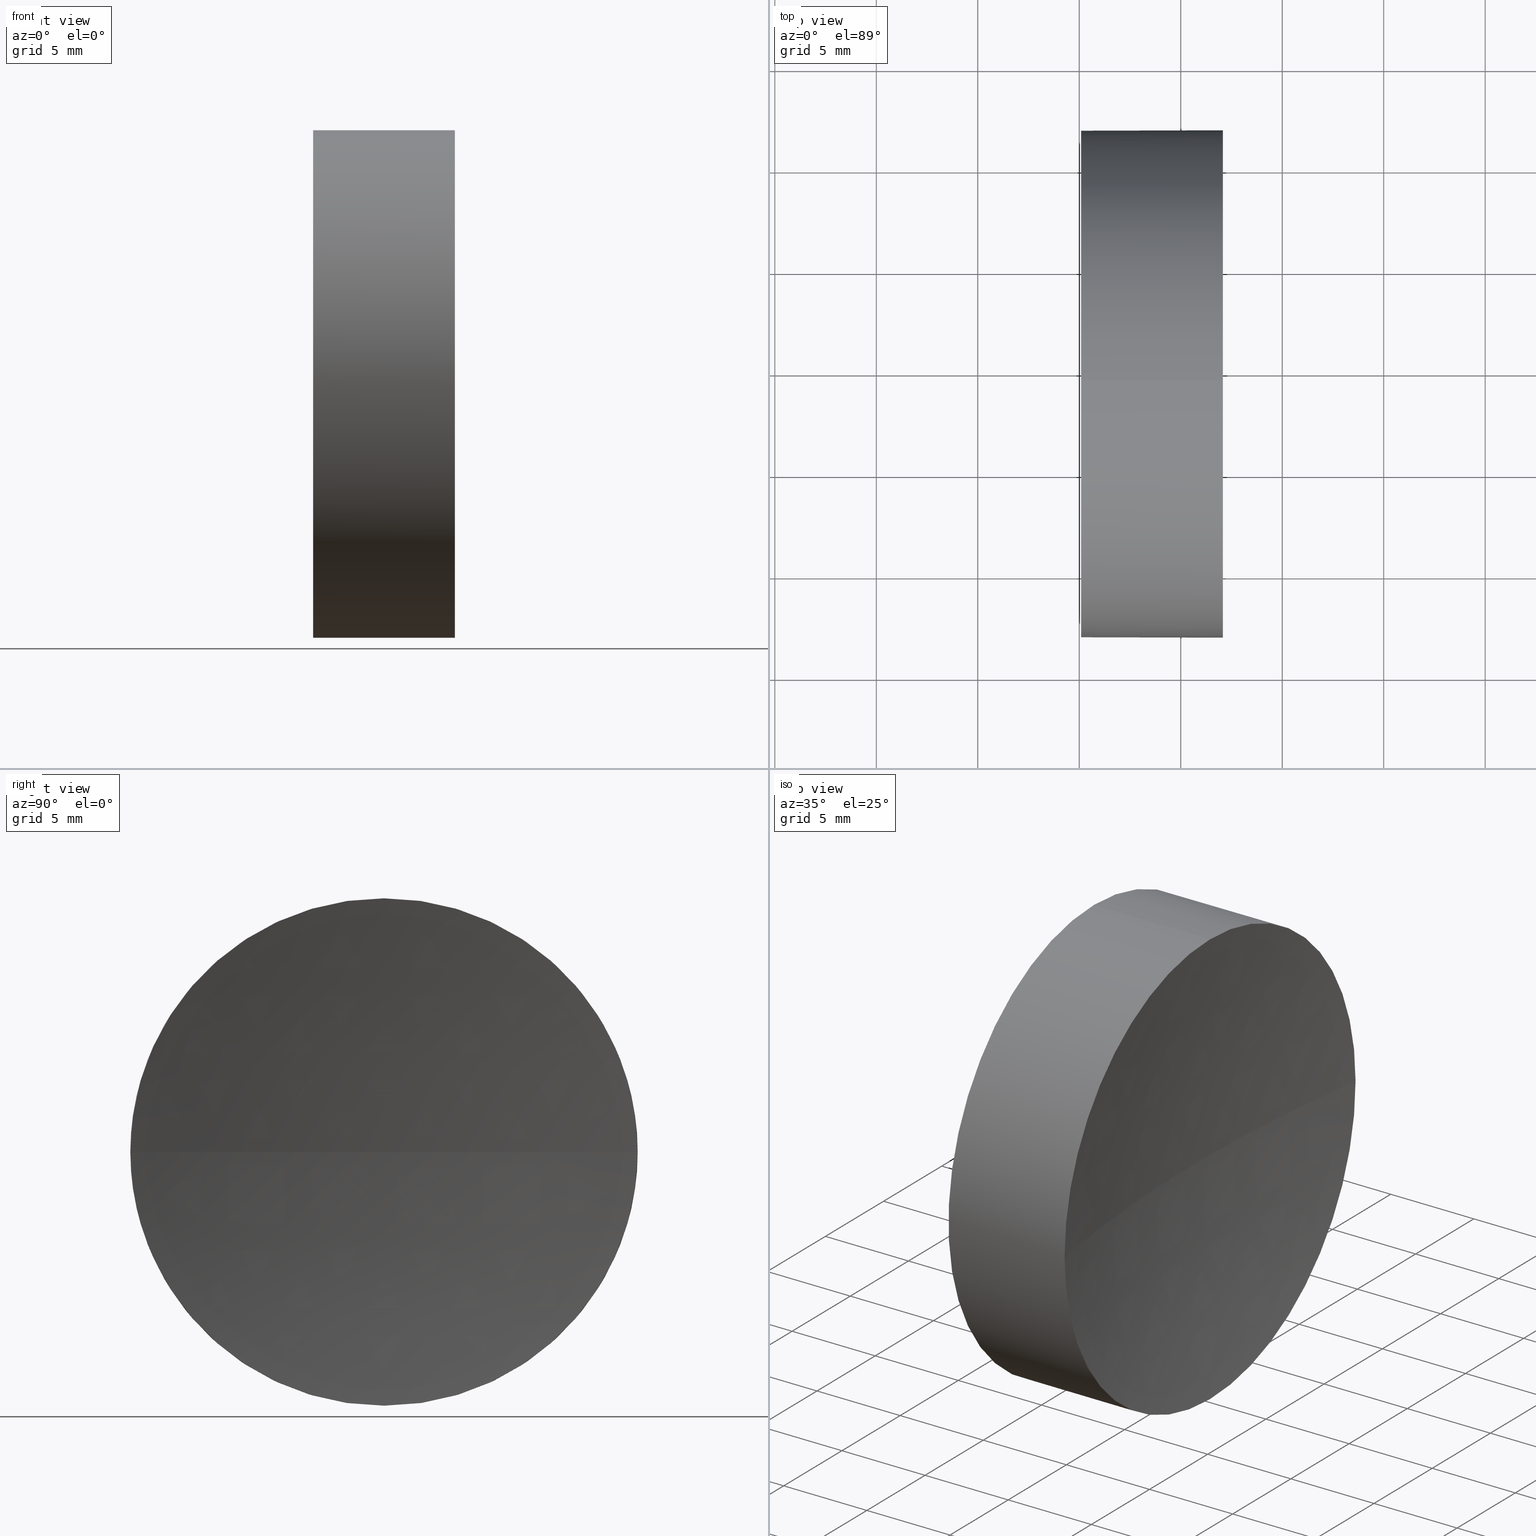
[diagram: canonical four-view strip — front | top / right | iso, engineering-drawing reading convention]
A machine part, canonical four-view strip (front | top / right | iso — engineering-drawing reading convention). The complete STEP part file that produces these views, byte-faithful:
ISO-10303-21;
HEADER;
FILE_DESCRIPTION (( 'STEP AP214' ),
    '1' );
FILE_NAME ('270024.STEP',
    '2019-07-22T06:32:47',
    ( '' ),
    ( '' ),
    'SwSTEP 2.0',
    'SolidWorks 2016',
    '' );
FILE_SCHEMA (( 'AUTOMOTIVE_DESIGN' ));
ENDSEC;

DATA;
#1 = ADVANCED_FACE ( 'NONE', ( #136 ), #141, .F. ) ;
#2 = MECHANICAL_DESIGN_GEOMETRIC_PRESENTATION_REPRESENTATION (  '', ( #81 ), #110 ) ;
#3 = DIRECTION ( 'NONE',  ( 0.0000000000000000000, 0.0000000000000000000, 1.000000000000000000 ) ) ;
#4 =( LENGTH_UNIT ( ) NAMED_UNIT ( * ) SI_UNIT ( .MILLI., .METRE. ) );
#5 = FACE_OUTER_BOUND ( 'NONE', #115, .T. ) ;
#6 = CARTESIAN_POINT ( 'NONE',  ( 122.0752660772947000, 81.87802112337247700, 1.530808498934193900E-015 ) ) ;
#7 = APPLICATION_PROTOCOL_DEFINITION ( 'draft international standard', 'automotive_design', 1998, #69 ) ;
#8 = DIRECTION ( 'NONE',  ( 0.0000000000000000000, 0.0000000000000000000, 1.000000000000000000 ) ) ;
#9 = CIRCLE ( 'NONE', #114, 12.49999999999999600 ) ;
#10 = PRODUCT_CONTEXT ( 'NONE', #69, 'mechanical' ) ;
#11 = EDGE_CURVE ( 'NONE', #26, #12, #9, .T. ) ;
#12 = VERTEX_POINT ( 'NONE', #31 ) ;
#13 = CIRCLE ( 'NONE', #166, 12.50000000000002500 ) ;
#14 = PRODUCT_DEFINITION ( 'δ֪', '', #53, #72 ) ;
#15 = DIRECTION ( 'NONE',  ( -1.000000000000000000, -0.0000000000000000000, -0.0000000000000000000 ) ) ;
#16 = CLOSED_SHELL ( 'NONE', ( #185, #56, #186, #113, #1 ) ) ;
#17 = EDGE_CURVE ( 'NONE', #83, #74, #54, .T. ) ;
#18 = DIRECTION ( 'NONE',  ( 0.0000000000000000000, 0.0000000000000000000, 1.000000000000000000 ) ) ;
#19 = DIRECTION ( 'NONE',  ( -1.000000000000000000, -0.0000000000000000000, -0.0000000000000000000 ) ) ;
#20 = EDGE_CURVE ( 'NONE', #182, #74, #51, .T. ) ;
#21 = CARTESIAN_POINT ( 'NONE',  ( 122.0752660772947000, 69.37802112337243400, 0.0000000000000000000 ) ) ;
#22 = FACE_OUTER_BOUND ( 'NONE', #82, .T. ) ;
#23 = DIRECTION ( 'NONE',  ( -1.000000000000000000, -0.0000000000000000000, -0.0000000000000000000 ) ) ;
#24 =( NAMED_UNIT ( * ) PLANE_ANGLE_UNIT ( ) SI_UNIT ( $, .RADIAN. ) );
#25 = ORIENTED_EDGE ( 'NONE', *, *, #106, .F. ) ;
#26 = VERTEX_POINT ( 'NONE', #45 ) ;
#27 = AXIS2_PLACEMENT_3D ( 'NONE', #128, #145, #117 ) ;
#28 = CARTESIAN_POINT ( 'NONE',  ( 115.0926555349195200, 69.37802112337243400, 0.0000000000000000000 ) ) ;
#29 = AXIS2_PLACEMENT_3D ( 'NONE', #48, #144, #67 ) ;
#30 = EDGE_LOOP ( 'NONE', ( #155, #142, #124, #112 ) ) ;
#31 = CARTESIAN_POINT ( 'NONE',  ( 115.0926555349195200, 69.37802112337243400, 12.49999999999999600 ) ) ;
#32 = ORIENTED_EDGE ( 'NONE', *, *, #111, .T. ) ;
#33 = SURFACE_SIDE_STYLE ('',( #66 ) ) ;
#34 = DIRECTION ( 'NONE',  ( -1.000000000000000000, -0.0000000000000000000, -0.0000000000000000000 ) ) ;
#35 = CARTESIAN_POINT ( 'NONE',  ( 122.0752660772947000, 69.37802112337243400, 0.0000000000000000000 ) ) ;
#36 =( LENGTH_UNIT ( ) NAMED_UNIT ( * ) SI_UNIT ( .MILLI., .METRE. ) );
#37 = DIRECTION ( 'NONE',  ( -1.000000000000000000, -0.0000000000000000000, -0.0000000000000000000 ) ) ;
#38 = EDGE_CURVE ( 'NONE', #182, #86, #13, .T. ) ;
#39 =( LENGTH_UNIT ( ) NAMED_UNIT ( * ) SI_UNIT ( .MILLI., .METRE. ) );
#40 = ORIENTED_EDGE ( 'NONE', *, *, #133, .T. ) ;
#41 = PRODUCT_DEFINITION_SHAPE ( 'NONE', 'NONE',  #14 ) ;
#42 = LINE ( 'NONE', #161, #146 ) ;
#43 = AXIS2_PLACEMENT_3D ( 'NONE', #148, #108, #149 ) ;
#44 = ADVANCED_BREP_SHAPE_REPRESENTATION ( '270024', ( #75, #173 ), #123 ) ;
#45 = CARTESIAN_POINT ( 'NONE',  ( 115.0926555349195200, 69.37802112337243400, -12.49999999999999600 ) ) ;
#46 = CARTESIAN_POINT ( 'NONE',  ( 122.0752660772947000, 69.37802112337243400, 0.0000000000000000000 ) ) ;
#47 = DIRECTION ( 'NONE',  ( 0.0000000000000000000, 0.0000000000000000000, 1.000000000000000000 ) ) ;
#48 = CARTESIAN_POINT ( 'NONE',  ( 201.0926692236902200, 69.37802112337246300, 0.0000000000000000000 ) ) ;
#49 = AXIS2_PLACEMENT_3D ( 'NONE', #125, #84, #176 ) ;
#50 = APPLICATION_CONTEXT ( 'automotive_design' ) ;
#51 = CIRCLE ( 'NONE', #29, 80.00000000000000000 ) ;
#52 = CARTESIAN_POINT ( 'NONE',  ( 122.0752660772947000, 69.37802112337243400, 0.0000000000000000000 ) ) ;
#53 = PRODUCT_DEFINITION_FORMATION_WITH_SPECIFIED_SOURCE ( '�κ�', '', #95, .NOT_KNOWN. ) ;
#54 = CIRCLE ( 'NONE', #49, 80.00000000000000000 ) ;
#55 = UNCERTAINTY_MEASURE_WITH_UNIT (LENGTH_MEASURE( 1.000000000000000100E-005 ), #39, 'distance_accuracy_value', 'NONE');
#56 = ADVANCED_FACE ( 'NONE', ( #118 ), #90, .F. ) ;
#57 = PRESENTATION_STYLE_ASSIGNMENT (( #134 ) ) ;
#58 = FACE_OUTER_BOUND ( 'NONE', #159, .T. ) ;
#59 = DIRECTION ( 'NONE',  ( 0.0000000000000000000, 0.0000000000000000000, -1.000000000000000000 ) ) ;
#60 = CARTESIAN_POINT ( 'NONE',  ( 122.0752660772947000, 69.37802112337243400, -12.50000000000002500 ) ) ;
#61 = VERTEX_POINT ( 'NONE', #116 ) ;
#62 = SHAPE_DEFINITION_REPRESENTATION ( #41, #44 ) ;
#63 = CARTESIAN_POINT ( 'NONE',  ( 115.0926555349195200, 69.37802112337243400, 0.0000000000000000000 ) ) ;
#64 = AXIS2_PLACEMENT_3D ( 'NONE', #102, #34, #147 ) ;
#65 = DIRECTION ( 'NONE',  ( 0.0000000000000000000, 0.0000000000000000000, 1.000000000000000000 ) ) ;
#66 = SURFACE_STYLE_FILL_AREA ( #174 ) ;
#67 = DIRECTION ( 'NONE',  ( 0.0000000000000000000, -1.000000000000000000, -1.224646799147353200E-016 ) ) ;
#68 =( NAMED_UNIT ( * ) PLANE_ANGLE_UNIT ( ) SI_UNIT ( $, .RADIAN. ) );
#69 = APPLICATION_CONTEXT ( 'automotive_design' ) ;
#70 = EDGE_LOOP ( 'NONE', ( #171, #181 ) ) ;
#71 = AXIS2_PLACEMENT_3D ( 'NONE', #35, #103, #65 ) ;
#72 = PRODUCT_DEFINITION_CONTEXT ( 'detailed design', #50, 'design' ) ;
#73 =( NAMED_UNIT ( * ) SI_UNIT ( $, .STERADIAN. ) SOLID_ANGLE_UNIT ( ) );
#74 = VERTEX_POINT ( 'NONE', #127 ) ;
#75 = MANIFOLD_SOLID_BREP ( '��ת1', #16 ) ;
#76 = CIRCLE ( 'NONE', #164, 12.50000000000002500 ) ;
#77 = CIRCLE ( 'NONE', #71, 12.50000000000002500 ) ;
#78 = PRESENTATION_LAYER_ASSIGNMENT (  '', '', ( #81 ) ) ;
#79 = DIRECTION ( 'NONE',  ( 1.000000000000000000, 0.0000000000000000000, 0.0000000000000000000 ) ) ;
#80 = DIRECTION ( 'NONE',  ( -1.000000000000000000, -0.0000000000000000000, -0.0000000000000000000 ) ) ;
#81 = STYLED_ITEM ( 'NONE', ( #57 ), #44 ) ;
#82 = EDGE_LOOP ( 'NONE', ( #122, #177, #25, #138 ) ) ;
#83 = VERTEX_POINT ( 'NONE', #179 ) ;
#84 = DIRECTION ( 'NONE',  ( 0.0000000000000000000, 0.0000000000000000000, -1.000000000000000000 ) ) ;
#85 = DIRECTION ( 'NONE',  ( 0.0000000000000000000, 0.0000000000000000000, 1.000000000000000000 ) ) ;
#86 = VERTEX_POINT ( 'NONE', #60 ) ;
#87 = DIRECTION ( 'NONE',  ( 1.000000000000000000, 0.0000000000000000000, 0.0000000000000000000 ) ) ;
#88 =( GEOMETRIC_REPRESENTATION_CONTEXT ( 3 ) GLOBAL_UNCERTAINTY_ASSIGNED_CONTEXT ( ( #183 ) ) GLOBAL_UNIT_ASSIGNED_CONTEXT ( ( #4, #119, #104 ) ) REPRESENTATION_CONTEXT ( 'NONE', 'WORKASPACE' ) );
#89 = PRODUCT_RELATED_PRODUCT_CATEGORY ( 'part', '', ( #95 ) ) ;
#90 = SPHERICAL_SURFACE ( 'NONE', #27, 80.00000000000000000 ) ;
#91 = CARTESIAN_POINT ( 'NONE',  ( 108.9851430021651000, 69.37802112337243400, -12.50000000000001100 ) ) ;
#92 = VECTOR ( 'NONE', #162, 1000.000000000000000 ) ;
#93 = ORIENTED_EDGE ( 'NONE', *, *, #11, .F. ) ;
#94 = FILL_AREA_STYLE_COLOUR ( '', #126 ) ;
#95 = PRODUCT ( '270024', '270024', '', ( #10 ) ) ;
#96 = CARTESIAN_POINT ( 'NONE',  ( 0.0000000000000000000, 0.0000000000000000000, 0.0000000000000000000 ) ) ;
#97 = MECHANICAL_DESIGN_GEOMETRIC_PRESENTATION_REPRESENTATION (  '', ( #178 ), #88 ) ;
#98 = CARTESIAN_POINT ( 'NONE',  ( 108.9851430021651000, 69.37802112337243400, 0.0000000000000000000 ) ) ;
#99 = CYLINDRICAL_SURFACE ( 'NONE', #150, 12.50000000000001100 ) ;
#100 = AXIS2_PLACEMENT_3D ( 'NONE', #52, #37, #135 ) ;
#101 = COLOUR_RGB ( '',1.000000000000000000, 1.000000000000000000, 1.000000000000000000 ) ;
#102 = CARTESIAN_POINT ( 'NONE',  ( 108.9851430021651000, 69.37802112337243400, 0.0000000000000000000 ) ) ;
#103 = DIRECTION ( 'NONE',  ( -1.000000000000000000, -0.0000000000000000000, -0.0000000000000000000 ) ) ;
#104 =( NAMED_UNIT ( * ) SI_UNIT ( $, .STERADIAN. ) SOLID_ANGLE_UNIT ( ) );
#105 = DIRECTION ( 'NONE',  ( -1.000000000000000000, -0.0000000000000000000, -0.0000000000000000000 ) ) ;
#106 = EDGE_CURVE ( 'NONE', #83, #61, #76, .T. ) ;
#107 = LINE ( 'NONE', #91, #92 ) ;
#108 = DIRECTION ( 'NONE',  ( 0.0000000000000000000, 0.0000000000000000000, 1.000000000000000000 ) ) ;
#109 = CIRCLE ( 'NONE', #139, 12.49999999999999600 ) ;
#110 =( GEOMETRIC_REPRESENTATION_CONTEXT ( 3 ) GLOBAL_UNCERTAINTY_ASSIGNED_CONTEXT ( ( #156 ) ) GLOBAL_UNIT_ASSIGNED_CONTEXT ( ( #36, #68, #180 ) ) REPRESENTATION_CONTEXT ( 'NONE', 'WORKASPACE' ) );
#111 = EDGE_CURVE ( 'NONE', #86, #26, #107, .T. ) ;
#112 = ORIENTED_EDGE ( 'NONE', *, *, #160, .F. ) ;
#113 = ADVANCED_FACE ( 'NONE', ( #5 ), #172, .T. ) ;
#114 = AXIS2_PLACEMENT_3D ( 'NONE', #28, #15, #3 ) ;
#115 = EDGE_LOOP ( 'NONE', ( #129, #184, #165, #40, #93 ) ) ;
#116 = CARTESIAN_POINT ( 'NONE',  ( 122.0752660772947000, 69.37802112337243400, 12.50000000000002500 ) ) ;
#117 = DIRECTION ( 'NONE',  ( 0.0000000000000000000, -1.000000000000000000, 0.0000000000000000000 ) ) ;
#118 = FACE_OUTER_BOUND ( 'NONE', #30, .T. ) ;
#119 =( NAMED_UNIT ( * ) PLANE_ANGLE_UNIT ( ) SI_UNIT ( $, .RADIAN. ) );
#120 = SURFACE_SIDE_STYLE ('',( #170 ) ) ;
#121 = APPLICATION_PROTOCOL_DEFINITION ( 'draft international standard', 'automotive_design', 1998, #50 ) ;
#122 = ORIENTED_EDGE ( 'NONE', *, *, #20, .F. ) ;
#123 =( GEOMETRIC_REPRESENTATION_CONTEXT ( 3 ) GLOBAL_UNCERTAINTY_ASSIGNED_CONTEXT ( ( #55 ) ) GLOBAL_UNIT_ASSIGNED_CONTEXT ( ( #39, #24, #73 ) ) REPRESENTATION_CONTEXT ( 'NONE', 'WORKASPACE' ) );
#124 = ORIENTED_EDGE ( 'NONE', *, *, #17, .F. ) ;
#125 = CARTESIAN_POINT ( 'NONE',  ( 201.0926692236902200, 69.37802112337246300, 0.0000000000000000000 ) ) ;
#126 = COLOUR_RGB ( '',1.000000000000000000, 1.000000000000000000, 1.000000000000000000 ) ;
#127 = CARTESIAN_POINT ( 'NONE',  ( 121.0926692236902400, 69.37802112337246300, 0.0000000000000000000 ) ) ;
#128 = CARTESIAN_POINT ( 'NONE',  ( 201.0926692236902200, 69.37802112337246300, 0.0000000000000000000 ) ) ;
#129 = ORIENTED_EDGE ( 'NONE', *, *, #111, .F. ) ;
#130 = ORIENTED_EDGE ( 'NONE', *, *, #169, .T. ) ;
#131 = AXIS2_PLACEMENT_3D ( 'NONE', #154, #79, #59 ) ;
#132 = CIRCLE ( 'NONE', #100, 12.50000000000002500 ) ;
#133 = EDGE_CURVE ( 'NONE', #61, #12, #42, .T. ) ;
#134 = SURFACE_STYLE_USAGE ( .BOTH. , #120 ) ;
#135 = DIRECTION ( 'NONE',  ( 0.0000000000000000000, 0.0000000000000000000, 1.000000000000000000 ) ) ;
#136 = FACE_OUTER_BOUND ( 'NONE', #70, .T. ) ;
#137 = EDGE_CURVE ( 'NONE', #12, #26, #109, .T. ) ;
#138 = ORIENTED_EDGE ( 'NONE', *, *, #17, .T. ) ;
#139 = AXIS2_PLACEMENT_3D ( 'NONE', #63, #80, #175 ) ;
#140 = ORIENTED_EDGE ( 'NONE', *, *, #38, .T. ) ;
#141 = PLANE ( 'NONE',  #131 ) ;
#142 = ORIENTED_EDGE ( 'NONE', *, *, #20, .T. ) ;
#143 = FILL_AREA_STYLE_COLOUR ( '', #101 ) ;
#144 = DIRECTION ( 'NONE',  ( 0.0000000000000000000, -1.224646799147353200E-016, 1.000000000000000000 ) ) ;
#145 = DIRECTION ( 'NONE',  ( 0.0000000000000000000, 0.0000000000000000000, 1.000000000000000000 ) ) ;
#146 = VECTOR ( 'NONE', #105, 1000.000000000000000 ) ;
#147 = DIRECTION ( 'NONE',  ( 0.0000000000000000000, 0.0000000000000000000, 1.000000000000000000 ) ) ;
#148 = CARTESIAN_POINT ( 'NONE',  ( 201.0926692236902200, 69.37802112337246300, 0.0000000000000000000 ) ) ;
#149 = DIRECTION ( 'NONE',  ( 0.0000000000000000000, -1.000000000000000000, 0.0000000000000000000 ) ) ;
#150 = AXIS2_PLACEMENT_3D ( 'NONE', #98, #23, #85 ) ;
#151 = ORIENTED_EDGE ( 'NONE', *, *, #137, .F. ) ;
#152 = PRESENTATION_LAYER_ASSIGNMENT (  '', '', ( #178 ) ) ;
#153 = PRESENTATION_STYLE_ASSIGNMENT (( #158 ) ) ;
#154 = CARTESIAN_POINT ( 'NONE',  ( 115.0926555349195200, 69.37802112337243400, 0.0000000000000000000 ) ) ;
#155 = ORIENTED_EDGE ( 'NONE', *, *, #38, .F. ) ;
#156 = UNCERTAINTY_MEASURE_WITH_UNIT (LENGTH_MEASURE( 1.000000000000000100E-005 ), #36, 'distance_accuracy_value', 'NONE');
#157 = DIRECTION ( 'NONE',  ( -1.000000000000000000, -0.0000000000000000000, -0.0000000000000000000 ) ) ;
#158 = SURFACE_STYLE_USAGE ( .BOTH. , #33 ) ;
#159 = EDGE_LOOP ( 'NONE', ( #140, #32, #151, #168, #130 ) ) ;
#160 = EDGE_CURVE ( 'NONE', #86, #83, #77, .T. ) ;
#161 = CARTESIAN_POINT ( 'NONE',  ( 108.9851430021651000, 69.37802112337243400, 12.50000000000001100 ) ) ;
#162 = DIRECTION ( 'NONE',  ( -1.000000000000000000, -0.0000000000000000000, -0.0000000000000000000 ) ) ;
#163 = FILL_AREA_STYLE ('',( #94 ) ) ;
#164 = AXIS2_PLACEMENT_3D ( 'NONE', #46, #157, #47 ) ;
#165 = ORIENTED_EDGE ( 'NONE', *, *, #106, .T. ) ;
#166 = AXIS2_PLACEMENT_3D ( 'NONE', #21, #19, #18 ) ;
#167 = SPHERICAL_SURFACE ( 'NONE', #43, 80.00000000000000000 ) ;
#168 = ORIENTED_EDGE ( 'NONE', *, *, #133, .F. ) ;
#169 = EDGE_CURVE ( 'NONE', #61, #182, #132, .T. ) ;
#170 = SURFACE_STYLE_FILL_AREA ( #163 ) ;
#171 = ORIENTED_EDGE ( 'NONE', *, *, #137, .T. ) ;
#172 = CYLINDRICAL_SURFACE ( 'NONE', #64, 12.50000000000001100 ) ;
#173 = AXIS2_PLACEMENT_3D ( 'NONE', #96, #8, #87 ) ;
#174 = FILL_AREA_STYLE ('',( #143 ) ) ;
#175 = DIRECTION ( 'NONE',  ( 0.0000000000000000000, 0.0000000000000000000, 1.000000000000000000 ) ) ;
#176 = DIRECTION ( 'NONE',  ( -1.000000000000000000, 0.0000000000000000000, 0.0000000000000000000 ) ) ;
#177 = ORIENTED_EDGE ( 'NONE', *, *, #169, .F. ) ;
#178 = STYLED_ITEM ( 'NONE', ( #153 ), #75 ) ;
#179 = CARTESIAN_POINT ( 'NONE',  ( 122.0752660772947000, 56.87802112337242000, 0.0000000000000000000 ) ) ;
#180 =( NAMED_UNIT ( * ) SI_UNIT ( $, .STERADIAN. ) SOLID_ANGLE_UNIT ( ) );
#181 = ORIENTED_EDGE ( 'NONE', *, *, #11, .T. ) ;
#182 = VERTEX_POINT ( 'NONE', #6 ) ;
#183 = UNCERTAINTY_MEASURE_WITH_UNIT (LENGTH_MEASURE( 1.000000000000000100E-005 ), #4, 'distance_accuracy_value', 'NONE');
#184 = ORIENTED_EDGE ( 'NONE', *, *, #160, .T. ) ;
#185 = ADVANCED_FACE ( 'NONE', ( #58 ), #99, .T. ) ;
#186 = ADVANCED_FACE ( 'NONE', ( #22 ), #167, .F. ) ;
ENDSEC;
END-ISO-10303-21;
